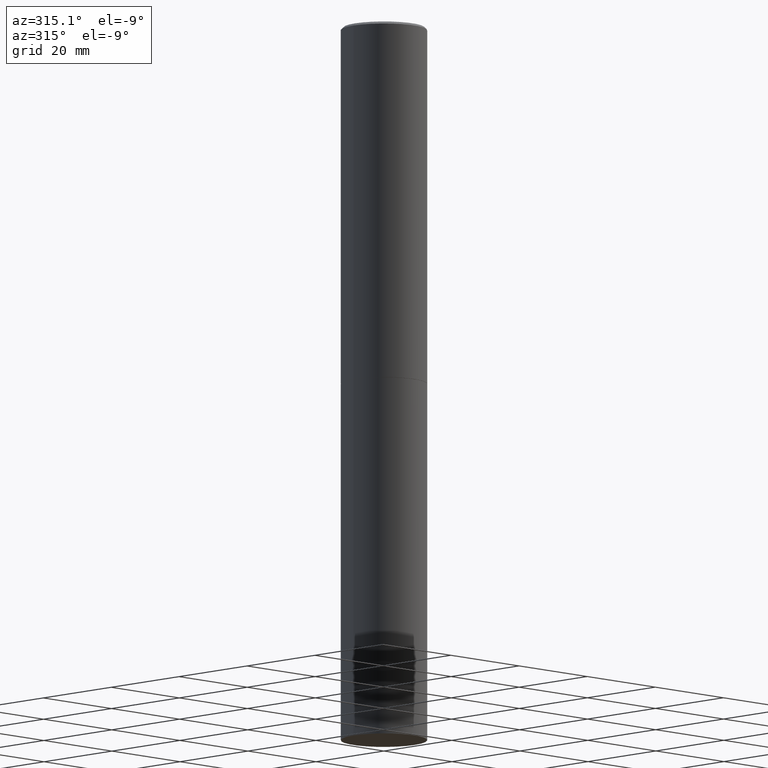
[diagram: clean part render]
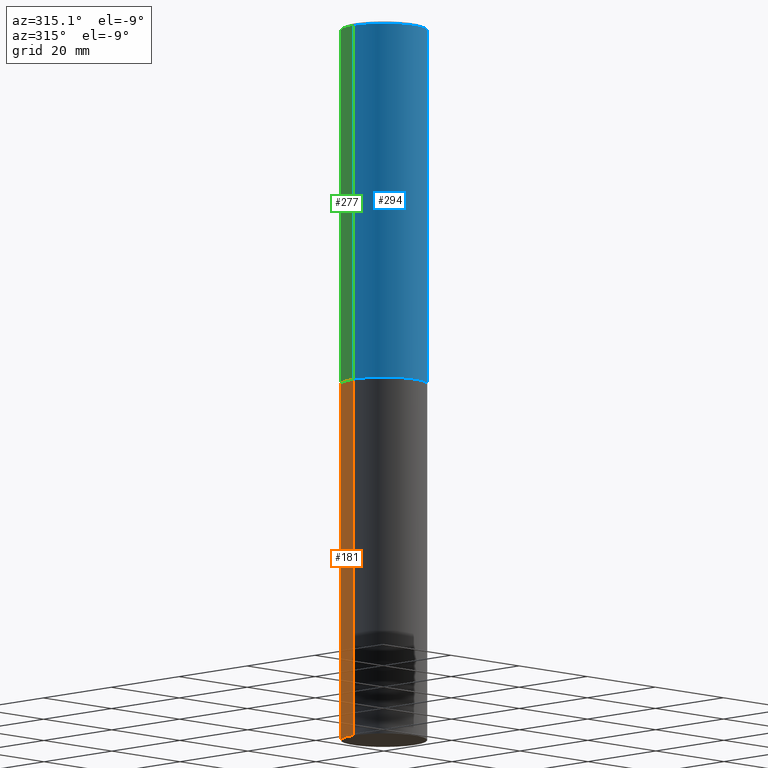
[diagram: same view with three faces highlighted in distinct colors, each labeled with its STEP entity id]
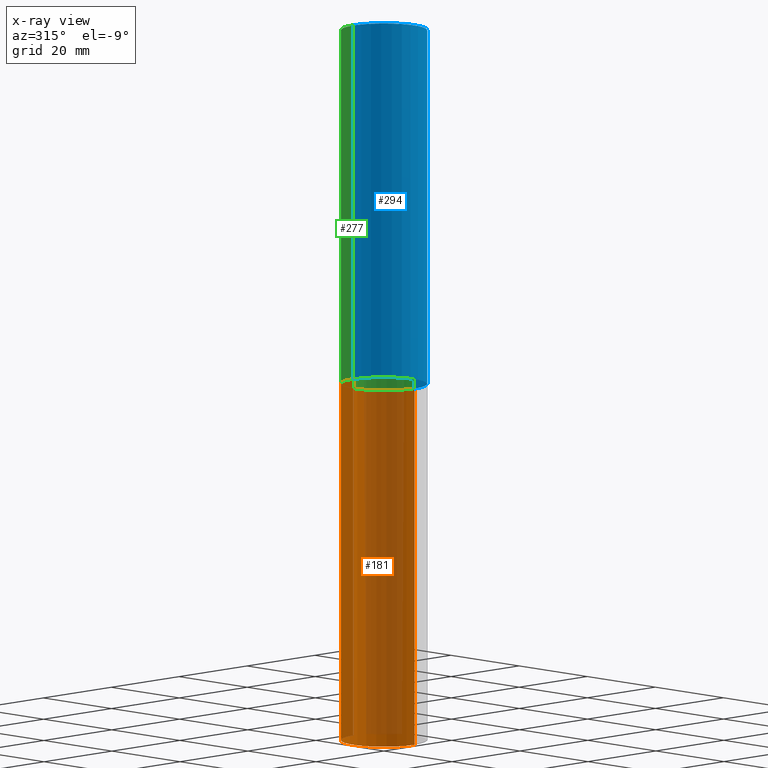
[diagram: x-ray of the same camera — body ghosted, the three highlighted faces saturated]
A machine part, auxiliary view with three faces highlighted in distinct colors.
The next image is the same camera in x-ray (body ghosted, the three faces saturated) — at least one of them is partly hidden behind the body in this view.
Their STEP definitions:

[orange] entity #181 — the highlighted cylindrical surface (partial cylindrical patch) has radius 9.0005 mm, axis along (-0, 0, 1).
#4 = CARTESIAN_POINT ( 'NONE',  ( 0.3543499999999999983, -2.309335587137632500E-14, -5.905499999999999972 ) ) ;
#11 = VERTEX_POINT ( 'NONE', #356 ) ;
#16 = EDGE_CURVE ( 'NONE', #176, #178, #47, .T. ) ;
#17 = DIRECTION ( 'NONE',  ( -2.445468806185136597E-29, 3.491481338843145583E-15, 1.000000000000000000 ) ) ;
#31 = CARTESIAN_POINT ( 'NONE',  ( -0.3543499999999999983, -1.294631181370425968E-14, -5.905499999999999972 ) ) ;
#43 = CARTESIAN_POINT ( 'NONE',  ( 1.444171603492632270E-28, -2.061894304653819197E-14, -5.905499999999999972 ) ) ;
#47 = CIRCLE ( 'NONE', #353, 0.3543499999999999983 ) ;
#53 = EDGE_CURVE ( 'NONE', #176, #11, #282, .T. ) ;
#67 = LINE ( 'NONE', #141, #323 ) ;
#69 = FACE_OUTER_BOUND ( 'NONE', #273, .T. ) ;
#95 = ORIENTED_EDGE ( 'NONE', *, *, #336, .F. ) ;
#96 = CARTESIAN_POINT ( 'NONE',  ( 0.000000000000000000, 0.000000000000000000, 0.000000000000000000 ) ) ;
#100 = ORIENTED_EDGE ( 'NONE', *, *, #16, .T. ) ;
#132 = DIRECTION ( 'NONE',  ( 1.000000000000000000, -6.982962677686265922E-15, 0.000000000000000000 ) ) ;
#133 = AXIS2_PLACEMENT_3D ( 'NONE', #158, #301, #132 ) ;
#137 = DIRECTION ( 'NONE',  ( -2.445468806185136877E-29, 3.491481338843145188E-15, 1.000000000000000000 ) ) ;
#141 = CARTESIAN_POINT ( 'NONE',  ( -0.3543499999999999983, 2.517808184165914997E-15, -1.743024649231826066E-29 ) ) ;
#158 = CARTESIAN_POINT ( 'NONE',  ( 7.220735744022852519E-29, -1.030929694920215502E-14, -2.952700000000000102 ) ) ;
#166 = CIRCLE ( 'NONE', #133, 0.3543499999999999983 ) ;
#172 = EDGE_CURVE ( 'NONE', #178, #247, #67, .T. ) ;
#174 = CYLINDRICAL_SURFACE ( 'NONE', #199, 0.3543499999999999983 ) ;
#176 = VERTEX_POINT ( 'NONE', #4 ) ;
#178 = VERTEX_POINT ( 'NONE', #31 ) ;
#181 = ADVANCED_FACE ( 'NONE', ( #69 ), #174, .T. ) ;
#199 = AXIS2_PLACEMENT_3D ( 'NONE', #96, #347, #236 ) ;
#203 = DIRECTION ( 'NONE',  ( -2.445468806185136877E-29, 3.491481338843145188E-15, 1.000000000000000000 ) ) ;
#204 = ORIENTED_EDGE ( 'NONE', *, *, #172, .T. ) ;
#228 = VECTOR ( 'NONE', #137, 39.37007874015748143 ) ;
#236 = DIRECTION ( 'NONE',  ( 1.000000000000000000, -6.982962677686266711E-15, 4.876176775795935793E-29 ) ) ;
#245 = DIRECTION ( 'NONE',  ( 1.000000000000000000, -6.982962677686271444E-15, 0.000000000000000000 ) ) ;
#247 = VERTEX_POINT ( 'NONE', #267 ) ;
#267 = CARTESIAN_POINT ( 'NONE',  ( -0.3543499999999999983, -1.294631181370425968E-14, -2.952700000000000102 ) ) ;
#273 = EDGE_LOOP ( 'NONE', ( #100, #204, #95, #293 ) ) ;
#282 = LINE ( 'NONE', #313, #228 ) ;
#293 = ORIENTED_EDGE ( 'NONE', *, *, #53, .F. ) ;
#301 = DIRECTION ( 'NONE',  ( -2.445468806185136597E-29, 3.491481338843145583E-15, 1.000000000000000000 ) ) ;
#313 = CARTESIAN_POINT ( 'NONE',  ( 0.3543499999999999983, -2.474412824838128694E-15, 1.727873240503289749E-29 ) ) ;
#323 = VECTOR ( 'NONE', #203, 39.37007874015748143 ) ;
#336 = EDGE_CURVE ( 'NONE', #11, #247, #166, .T. ) ;
#347 = DIRECTION ( 'NONE',  ( -2.445468806185136597E-29, 3.491481338843145583E-15, 1.000000000000000000 ) ) ;
#353 = AXIS2_PLACEMENT_3D ( 'NONE', #43, #17, #245 ) ;
#356 = CARTESIAN_POINT ( 'NONE',  ( 0.3543499999999999983, -1.278370977404028332E-14, -2.952700000000000102 ) ) ;

[blue] entity #294 — the highlighted cylindrical surface (partial cylindrical patch) has radius 9.0005 mm, axis along (-0, 0, 1).
#8 = CARTESIAN_POINT ( 'NONE',  ( -0.3543499999999999983, -2.670009363154171868E-15, -2.951700000000000212 ) ) ;
#34 = AXIS2_PLACEMENT_3D ( 'NONE', #153, #361, #244 ) ;
#38 = EDGE_CURVE ( 'NONE', #206, #348, #175, .T. ) ;
#39 = CYLINDRICAL_SURFACE ( 'NONE', #34, 0.3543499999999998873 ) ;
#57 = DIRECTION ( 'NONE',  ( -2.445468806185136877E-29, 3.491481338843145188E-15, 1.000000000000000000 ) ) ;
#70 = ORIENTED_EDGE ( 'NONE', *, *, #38, .F. ) ;
#74 = EDGE_CURVE ( 'NONE', #233, #348, #253, .T. ) ;
#101 = FACE_OUTER_BOUND ( 'NONE', #173, .T. ) ;
#126 = CARTESIAN_POINT ( 'NONE',  ( 0.3543499999999999983, -1.278021829270144189E-14, -2.951700000000000212 ) ) ;
#130 = CARTESIAN_POINT ( 'NONE',  ( 0.3543499999999996652, -2.500847092287203323E-15, -0.02000000000000008021 ) ) ;
#135 = DIRECTION ( 'NONE',  ( -2.445468806185136877E-29, 3.491481338843145188E-15, 1.000000000000000000 ) ) ;
#143 = CARTESIAN_POINT ( 'NONE',  ( -0.3543499999999996652, 2.404583198061263029E-15, -0.02000000000000008021 ) ) ;
#150 = DIRECTION ( 'NONE',  ( 1.000000000000000000, -6.982962677686265922E-15, 0.000000000000000000 ) ) ;
#151 = ORIENTED_EDGE ( 'NONE', *, *, #74, .T. ) ;
#153 = CARTESIAN_POINT ( 'NONE',  ( 0.000000000000000000, 0.000000000000000000, 0.000000000000000000 ) ) ;
#173 = EDGE_LOOP ( 'NONE', ( #352, #322, #151, #70 ) ) ;
#175 = CIRCLE ( 'NONE', #212, 0.3543499999999996652 ) ;
#184 = VECTOR ( 'NONE', #135, 39.37007874015748143 ) ;
#206 = VERTEX_POINT ( 'NONE', #143 ) ;
#208 = VERTEX_POINT ( 'NONE', #8 ) ;
#210 = CARTESIAN_POINT ( 'NONE',  ( 7.218290275216666916E-29, -1.030580546786331359E-14, -2.951700000000000212 ) ) ;
#211 = CARTESIAN_POINT ( 'NONE',  ( 4.890937612370293302E-31, -6.982962677686318726E-17, -0.02000000000000008021 ) ) ;
#212 = AXIS2_PLACEMENT_3D ( 'NONE', #211, #332, #302 ) ;
#218 = VECTOR ( 'NONE', #57, 39.37007874015748143 ) ;
#233 = VERTEX_POINT ( 'NONE', #126 ) ;
#239 = CARTESIAN_POINT ( 'NONE',  ( -0.3543499999999998873, 2.517808184165914208E-15, -1.743024649231825225E-29 ) ) ;
#244 = DIRECTION ( 'NONE',  ( 1.000000000000000000, -6.982962677686266711E-15, 4.876176775795935232E-29 ) ) ;
#253 = LINE ( 'NONE', #338, #218 ) ;
#275 = LINE ( 'NONE', #239, #184 ) ;
#294 = ADVANCED_FACE ( 'NONE', ( #101 ), #39, .T. ) ;
#302 = DIRECTION ( 'NONE',  ( 1.000000000000000000, -6.982962677686266711E-15, 0.000000000000000000 ) ) ;
#322 = ORIENTED_EDGE ( 'NONE', *, *, #342, .T. ) ;
#332 = DIRECTION ( 'NONE',  ( -2.445468806185136597E-29, 3.491481338843145583E-15, 1.000000000000000000 ) ) ;
#333 = DIRECTION ( 'NONE',  ( -2.445468806185136597E-29, 3.491481338843145583E-15, 1.000000000000000000 ) ) ;
#338 = CARTESIAN_POINT ( 'NONE',  ( 0.3543499999999998873, -2.474412824838127905E-15, 1.727873240503289188E-29 ) ) ;
#339 = CIRCLE ( 'NONE', #345, 0.3543499999999999983 ) ;
#342 = EDGE_CURVE ( 'NONE', #208, #233, #339, .T. ) ;
#345 = AXIS2_PLACEMENT_3D ( 'NONE', #210, #333, #150 ) ;
#348 = VERTEX_POINT ( 'NONE', #130 ) ;
#352 = ORIENTED_EDGE ( 'NONE', *, *, #360, .F. ) ;
#360 = EDGE_CURVE ( 'NONE', #208, #206, #275, .T. ) ;
#361 = DIRECTION ( 'NONE',  ( -2.445468806185136597E-29, 3.491481338843145583E-15, 1.000000000000000000 ) ) ;

[green] entity #277 — the highlighted cylindrical surface (partial cylindrical patch) has radius 9.0005 mm, axis along (-0, 0, 1).
#8 = CARTESIAN_POINT ( 'NONE',  ( -0.3543499999999999983, -2.670009363154171868E-15, -2.951700000000000212 ) ) ;
#10 = DIRECTION ( 'NONE',  ( 1.000000000000000000, -6.982962677686266711E-15, 4.876176775795935232E-29 ) ) ;
#19 = CIRCLE ( 'NONE', #161, 0.3543499999999999983 ) ;
#35 = CYLINDRICAL_SURFACE ( 'NONE', #284, 0.3543499999999998873 ) ;
#50 = ORIENTED_EDGE ( 'NONE', *, *, #154, .T. ) ;
#57 = DIRECTION ( 'NONE',  ( -2.445468806185136877E-29, 3.491481338843145188E-15, 1.000000000000000000 ) ) ;
#68 = EDGE_LOOP ( 'NONE', ( #50, #300, #160, #119 ) ) ;
#74 = EDGE_CURVE ( 'NONE', #233, #348, #253, .T. ) ;
#118 = DIRECTION ( 'NONE',  ( 1.000000000000000000, -6.982962677686265922E-15, 0.000000000000000000 ) ) ;
#119 = ORIENTED_EDGE ( 'NONE', *, *, #74, .F. ) ;
#124 = FACE_OUTER_BOUND ( 'NONE', #68, .T. ) ;
#126 = CARTESIAN_POINT ( 'NONE',  ( 0.3543499999999999983, -1.278021829270144189E-14, -2.951700000000000212 ) ) ;
#130 = CARTESIAN_POINT ( 'NONE',  ( 0.3543499999999996652, -2.500847092287203323E-15, -0.02000000000000008021 ) ) ;
#135 = DIRECTION ( 'NONE',  ( -2.445468806185136877E-29, 3.491481338843145188E-15, 1.000000000000000000 ) ) ;
#143 = CARTESIAN_POINT ( 'NONE',  ( -0.3543499999999996652, 2.404583198061263029E-15, -0.02000000000000008021 ) ) ;
#154 = EDGE_CURVE ( 'NONE', #233, #208, #19, .T. ) ;
#160 = ORIENTED_EDGE ( 'NONE', *, *, #266, .F. ) ;
#161 = AXIS2_PLACEMENT_3D ( 'NONE', #289, #326, #118 ) ;
#167 = DIRECTION ( 'NONE',  ( -2.445468806185136597E-29, 3.491481338843145583E-15, 1.000000000000000000 ) ) ;
#184 = VECTOR ( 'NONE', #135, 39.37007874015748143 ) ;
#206 = VERTEX_POINT ( 'NONE', #143 ) ;
#208 = VERTEX_POINT ( 'NONE', #8 ) ;
#218 = VECTOR ( 'NONE', #57, 39.37007874015748143 ) ;
#233 = VERTEX_POINT ( 'NONE', #126 ) ;
#239 = CARTESIAN_POINT ( 'NONE',  ( -0.3543499999999998873, 2.517808184165914208E-15, -1.743024649231825225E-29 ) ) ;
#253 = LINE ( 'NONE', #338, #218 ) ;
#264 = DIRECTION ( 'NONE',  ( -2.445468806185136597E-29, 3.491481338843145583E-15, 1.000000000000000000 ) ) ;
#266 = EDGE_CURVE ( 'NONE', #348, #206, #291, .T. ) ;
#275 = LINE ( 'NONE', #239, #184 ) ;
#277 = ADVANCED_FACE ( 'NONE', ( #124 ), #35, .T. ) ;
#284 = AXIS2_PLACEMENT_3D ( 'NONE', #287, #264, #10 ) ;
#285 = DIRECTION ( 'NONE',  ( 1.000000000000000000, -6.982962677686266711E-15, 0.000000000000000000 ) ) ;
#287 = CARTESIAN_POINT ( 'NONE',  ( 0.000000000000000000, 0.000000000000000000, 0.000000000000000000 ) ) ;
#289 = CARTESIAN_POINT ( 'NONE',  ( 7.218290275216666916E-29, -1.030580546786331359E-14, -2.951700000000000212 ) ) ;
#291 = CIRCLE ( 'NONE', #311, 0.3543499999999996652 ) ;
#300 = ORIENTED_EDGE ( 'NONE', *, *, #360, .T. ) ;
#311 = AXIS2_PLACEMENT_3D ( 'NONE', #349, #167, #285 ) ;
#326 = DIRECTION ( 'NONE',  ( -2.445468806185136597E-29, 3.491481338843145583E-15, 1.000000000000000000 ) ) ;
#338 = CARTESIAN_POINT ( 'NONE',  ( 0.3543499999999998873, -2.474412824838127905E-15, 1.727873240503289188E-29 ) ) ;
#348 = VERTEX_POINT ( 'NONE', #130 ) ;
#349 = CARTESIAN_POINT ( 'NONE',  ( 4.890937612370293302E-31, -6.982962677686318726E-17, -0.02000000000000008021 ) ) ;
#360 = EDGE_CURVE ( 'NONE', #208, #206, #275, .T. ) ;